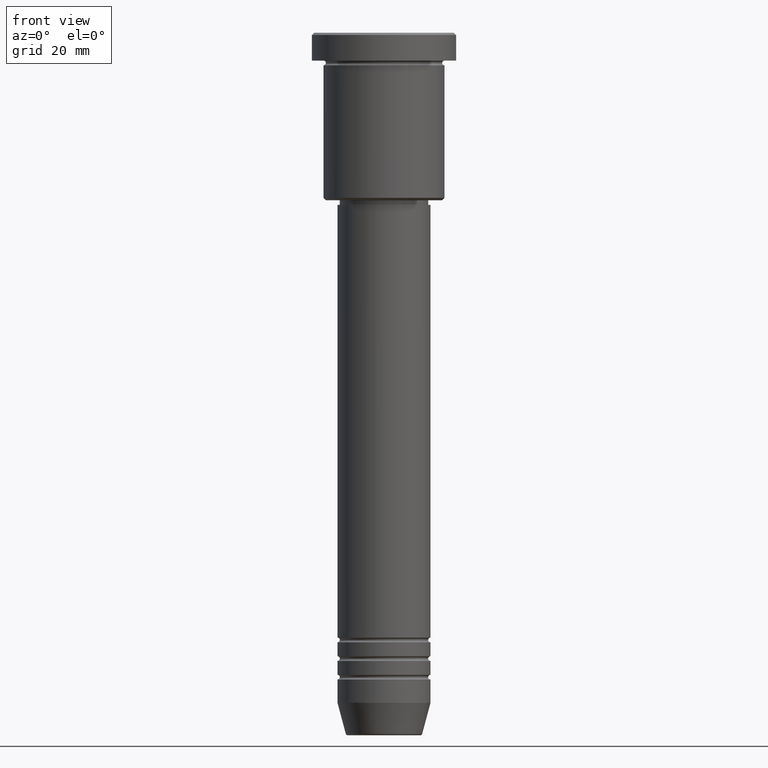
[diagram: clean part render]
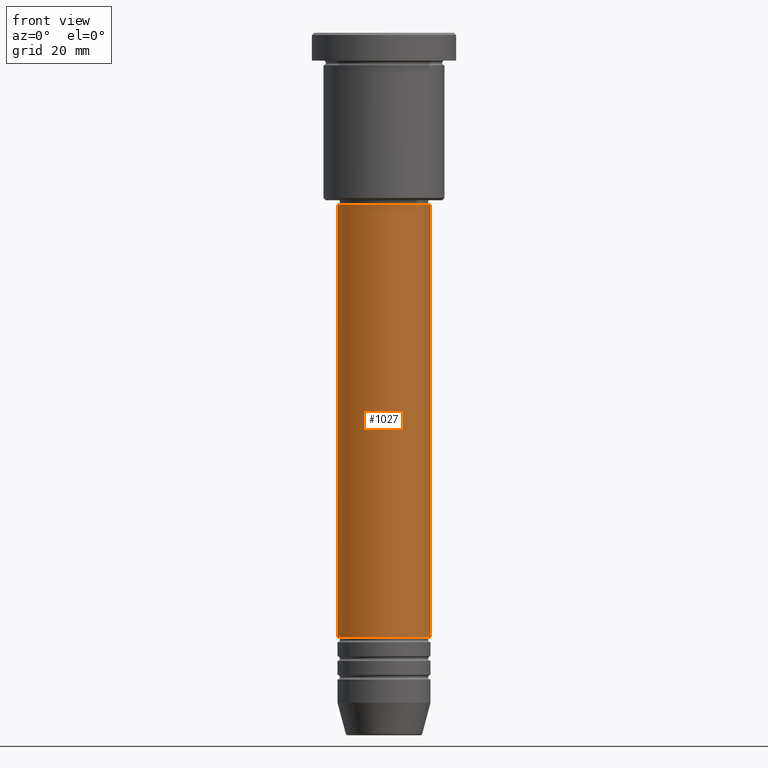
[diagram: same view with one face highlighted and labeled with its STEP entity id]
A machine part, front view. The second image highlights one B-rep face of the part: STEP entity #1027.
In plain terms, the highlighted cylindrical surface (partial cylindrical patch) has radius 10 mm, axis along (-0, -0, 1).
Its self-contained STEP definition (entity closure, byte-faithful):
#42 = AXIS2_PLACEMENT_3D ( 'NONE', #271, #1083, #608 ) ;
#84 = CIRCLE ( 'NONE', #592, 9.999999999999998224 ) ;
#124 = CARTESIAN_POINT ( 'NONE',  ( 0.000000000000000000, 0.000000000000000000, -37.00000000000000000 ) ) ;
#142 = CARTESIAN_POINT ( 'NONE',  ( 0.000000000000000000, 0.000000000000000000, -129.9999999999998863 ) ) ;
#150 = CIRCLE ( 'NONE', #819, 10.00000000000000178 ) ;
#165 = VERTEX_POINT ( 'NONE', #694 ) ;
#171 = CARTESIAN_POINT ( 'NONE',  ( 10.00000000000000000, 0.000000000000000000, 0.000000000000000000 ) ) ;
#175 = ORIENTED_EDGE ( 'NONE', *, *, #426, .F. ) ;
#184 = VERTEX_POINT ( 'NONE', #795 ) ;
#217 = EDGE_CURVE ( 'NONE', #165, #246, #715, .T. ) ;
#223 = ORIENTED_EDGE ( 'NONE', *, *, #968, .F. ) ;
#246 = VERTEX_POINT ( 'NONE', #375 ) ;
#271 = CARTESIAN_POINT ( 'NONE',  ( 0.000000000000000000, 0.000000000000000000, 0.000000000000000000 ) ) ;
#311 = DIRECTION ( 'NONE',  ( 1.000000000000000000, 0.000000000000000000, 0.000000000000000000 ) ) ;
#375 = CARTESIAN_POINT ( 'NONE',  ( 9.999999999999998224, 0.000000000000000000, -37.00000000000000000 ) ) ;
#426 = EDGE_CURVE ( 'NONE', #593, #246, #84, .T. ) ;
#435 = EDGE_LOOP ( 'NONE', ( #223, #820, #1178, #175 ) ) ;
#523 = LINE ( 'NONE', #686, #859 ) ;
#567 = DIRECTION ( 'NONE',  ( -0.000000000000000000, -0.000000000000000000, 1.000000000000000000 ) ) ;
#591 = VECTOR ( 'NONE', #618, 1000.000000000000000 ) ;
#592 = AXIS2_PLACEMENT_3D ( 'NONE', #124, #567, #311 ) ;
#593 = VERTEX_POINT ( 'NONE', #648 ) ;
#594 = DIRECTION ( 'NONE',  ( -0.000000000000000000, -0.000000000000000000, 1.000000000000000000 ) ) ;
#608 = DIRECTION ( 'NONE',  ( 1.000000000000000000, 0.000000000000000000, 0.000000000000000000 ) ) ;
#618 = DIRECTION ( 'NONE',  ( -0.000000000000000000, -0.000000000000000000, 1.000000000000000000 ) ) ;
#648 = CARTESIAN_POINT ( 'NONE',  ( -9.999999999999998224, 1.224646799147353256E-15, -37.00000000000000000 ) ) ;
#686 = CARTESIAN_POINT ( 'NONE',  ( -10.00000000000000000, 1.224646799147353256E-15, 0.000000000000000000 ) ) ;
#694 = CARTESIAN_POINT ( 'NONE',  ( 10.00000000000000178, 0.000000000000000000, -129.9999999999998863 ) ) ;
#715 = LINE ( 'NONE', #171, #591 ) ;
#725 = CYLINDRICAL_SURFACE ( 'NONE', #42, 10.00000000000000000 ) ;
#792 = EDGE_CURVE ( 'NONE', #184, #165, #150, .T. ) ;
#795 = CARTESIAN_POINT ( 'NONE',  ( -10.00000000000000178, 1.224646799147353454E-15, -129.9999999999998863 ) ) ;
#819 = AXIS2_PLACEMENT_3D ( 'NONE', #142, #594, #939 ) ;
#820 = ORIENTED_EDGE ( 'NONE', *, *, #792, .T. ) ;
#859 = VECTOR ( 'NONE', #965, 1000.000000000000000 ) ;
#939 = DIRECTION ( 'NONE',  ( 1.000000000000000000, 0.000000000000000000, 0.000000000000000000 ) ) ;
#965 = DIRECTION ( 'NONE',  ( -0.000000000000000000, -0.000000000000000000, 1.000000000000000000 ) ) ;
#968 = EDGE_CURVE ( 'NONE', #184, #593, #523, .T. ) ;
#992 = FACE_OUTER_BOUND ( 'NONE', #435, .T. ) ;
#1027 = ADVANCED_FACE ( 'NONE', ( #992 ), #725, .T. ) ;
#1083 = DIRECTION ( 'NONE',  ( -0.000000000000000000, -0.000000000000000000, 1.000000000000000000 ) ) ;
#1178 = ORIENTED_EDGE ( 'NONE', *, *, #217, .T. ) ;